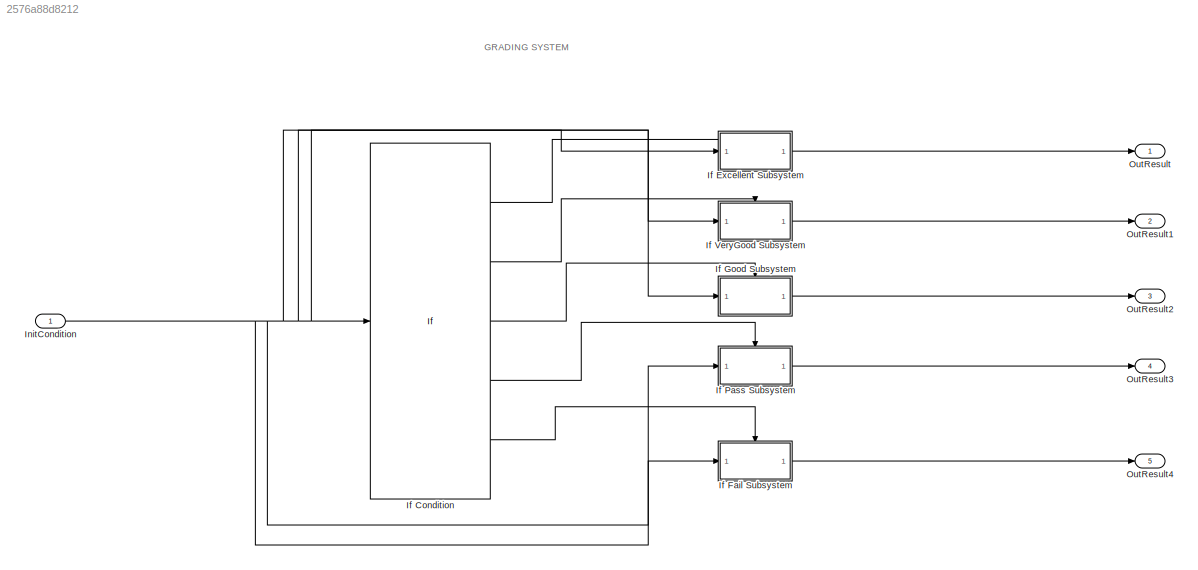
MODEL slx_2576a88d8212
KIND model
CONFIG AbsTol = auto
CONFIG EnableMultiTasking = off
CONFIG FixedStep = auto
CONFIG MaxStep = auto
CONFIG MinStep = auto
CONFIG RelTol = 1e-3
CONFIG SampleTimeConstraint = Unconstrained
CONFIG Solver = FixedStepDiscrete
CONFIG SolverName = FixedStepDiscrete
CONFIG StartTime = 0.0
CONFIG StopTime = 10.0
BLOCK [If] If Condition
  ElseIfExpressions = u1 >= 75,u1 >= 65,u1 >=50
  IfExpression = u1 >= 85
  Ports = [1, 5]
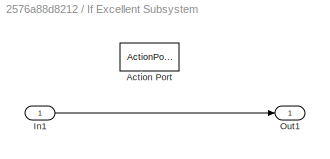
BLOCK [SubSystem] If Excellent Subsystem
  Ports = [1, 1, 0, 0, 0, 0, 0, 1]
  RequestExecContextInheritance = off
  TreatAsAtomicUnit = on
  Variant = off
BLOCK [ActionPort] If Excellent Subsystem/Action Port
  ActionType = then
BLOCK [Inport] If Excellent Subsystem/In1
  IconDisplay = Port number
BLOCK [Outport] If Excellent Subsystem/Out1
  IconDisplay = Port number
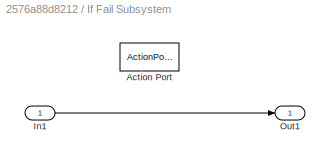
BLOCK [SubSystem] If Fail Subsystem
  Ports = [1, 1, 0, 0, 0, 0, 0, 1]
  RequestExecContextInheritance = off
  TreatAsAtomicUnit = on
  Variant = off
BLOCK [ActionPort] If Fail Subsystem/Action Port
  ActionType = else
BLOCK [Inport] If Fail Subsystem/In1
  IconDisplay = Port number
BLOCK [Outport] If Fail Subsystem/Out1
  IconDisplay = Port number
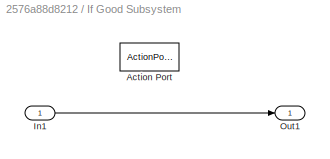
BLOCK [SubSystem] If Good Subsystem
  Ports = [1, 1, 0, 0, 0, 0, 0, 1]
  RequestExecContextInheritance = off
  TreatAsAtomicUnit = on
  Variant = off
BLOCK [ActionPort] If Good Subsystem/Action Port
  ActionType = elseif
BLOCK [Inport] If Good Subsystem/In1
  IconDisplay = Port number
BLOCK [Outport] If Good Subsystem/Out1
  IconDisplay = Port number
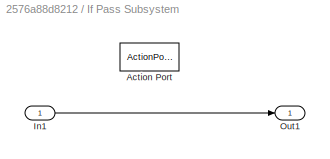
BLOCK [SubSystem] If Pass Subsystem
  Ports = [1, 1, 0, 0, 0, 0, 0, 1]
  RequestExecContextInheritance = off
  TreatAsAtomicUnit = on
  Variant = off
BLOCK [ActionPort] If Pass Subsystem/Action Port
  ActionType = elseif
BLOCK [Inport] If Pass Subsystem/In1
  IconDisplay = Port number
BLOCK [Outport] If Pass Subsystem/Out1
  IconDisplay = Port number
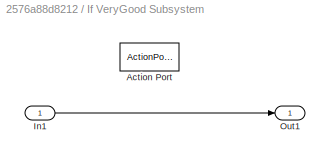
BLOCK [SubSystem] If VeryGood Subsystem
  Ports = [1, 1, 0, 0, 0, 0, 0, 1]
  RequestExecContextInheritance = off
  TreatAsAtomicUnit = on
  Variant = off
BLOCK [ActionPort] If VeryGood Subsystem/Action Port
  ActionType = elseif
BLOCK [Inport] If VeryGood Subsystem/In1
  IconDisplay = Port number
BLOCK [Outport] If VeryGood Subsystem/Out1
  IconDisplay = Port number
BLOCK [Inport] InitCondition
  IconDisplay = Port number
BLOCK [Outport] OutResult
  IconDisplay = Port number
BLOCK [Outport] OutResult1
  IconDisplay = Port number
  Port = 2
BLOCK [Outport] OutResult2
  IconDisplay = Port number
  Port = 3
BLOCK [Outport] OutResult3
  IconDisplay = Port number
  Port = 4
BLOCK [Outport] OutResult4
  IconDisplay = Port number
  Port = 5
ANNOTATION (root): GRADING SYSTEM
LINE If Condition:1 -> If Excellent Subsystem:ifaction
LINE If Condition:2 -> If VeryGood Subsystem:ifaction
LINE If Condition:3 -> If Good Subsystem:ifaction
LINE If Condition:4 -> If Pass Subsystem:ifaction
LINE If Condition:5 -> If Fail Subsystem:ifaction
LINE If Excellent Subsystem/In1:1 -> If Excellent Subsystem/Out1:1
LINE If Excellent Subsystem:1 -> OutResult:1
LINE If Fail Subsystem/In1:1 -> If Fail Subsystem/Out1:1
LINE If Fail Subsystem:1 -> OutResult4:1
LINE If Good Subsystem/In1:1 -> If Good Subsystem/Out1:1
LINE If Good Subsystem:1 -> OutResult2:1
LINE If Pass Subsystem/In1:1 -> If Pass Subsystem/Out1:1
LINE If Pass Subsystem:1 -> OutResult3:1
LINE If VeryGood Subsystem/In1:1 -> If VeryGood Subsystem/Out1:1
LINE If VeryGood Subsystem:1 -> OutResult1:1
NET InitCondition:1 -> If Condition:1, If Excellent Subsystem:1, If Fail Subsystem:1, If Good Subsystem:1, If Pass Subsystem:1, If VeryGood Subsystem:1
note: NET lines group one-source signal fan-out (src -> all destinations, sorted); 1:1 wires keep LINE
